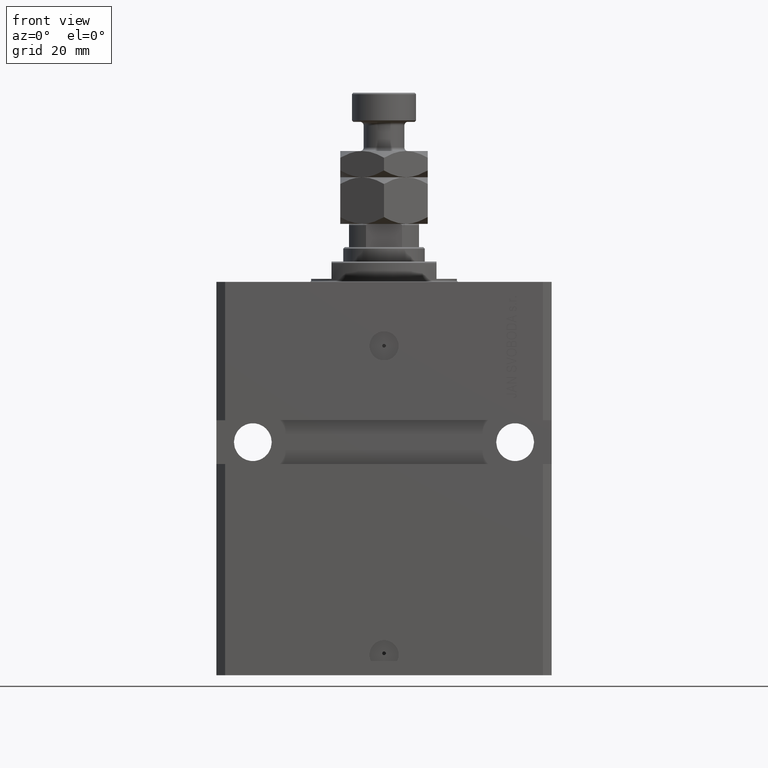
[diagram: clean part render]
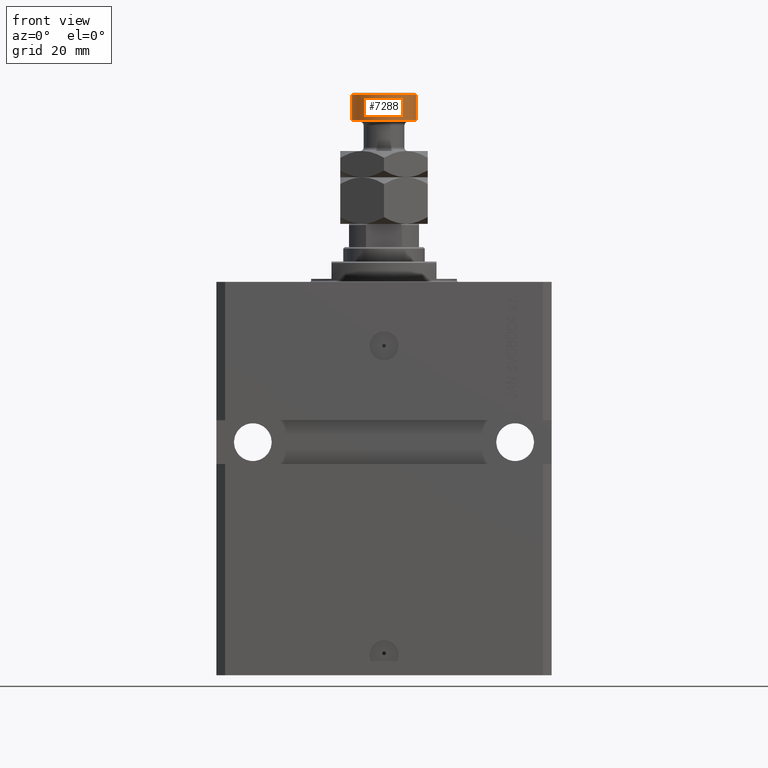
[diagram: same view with one face highlighted and labeled with its STEP entity id]
A machine part, front view. The second image highlights one B-rep face of the part: STEP entity #7288.
In plain terms, the highlighted cylindrical surface (edge-blend (fillet) strip) has radius 11 mm, axis along (-0, -0, -1).
Its self-contained STEP definition (entity closure, byte-faithful):
#4682 = AXIS2_PLACEMENT_3D ( 'NONE', #28745, #43405, #8161 ) ;
#4848 = CIRCLE ( 'NONE', #10582, 11.00000000000000000 ) ;
#6875 = DIRECTION ( 'NONE',  ( -0.000000000000000000, -0.000000000000000000, 1.000000000000000000 ) ) ;
#6918 = CARTESIAN_POINT ( 'NONE',  ( 11.00000000000000000, 1.347111479062088405E-15, 45.00000000000000711 ) ) ;
#7006 = VERTEX_POINT ( 'NONE', #44578 ) ;
#7288 = ADVANCED_FACE ( 'NONE', ( #35945 ), #32082, .T. ) ;
#7792 = VERTEX_POINT ( 'NONE', #29947 ) ;
#8161 = DIRECTION ( 'NONE',  ( 1.000000000000000000, 0.000000000000000000, 0.000000000000000000 ) ) ;
#8205 = VERTEX_POINT ( 'NONE', #45300 ) ;
#8881 = ORIENTED_EDGE ( 'NONE', *, *, #28203, .F. ) ;
#10582 = AXIS2_PLACEMENT_3D ( 'NONE', #45222, #6875, #33406 ) ;
#12874 = DIRECTION ( 'NONE',  ( -0.000000000000000000, -0.000000000000000000, -1.000000000000000000 ) ) ;
#14477 = EDGE_CURVE ( 'NONE', #7006, #8205, #17853, .T. ) ;
#16134 = DIRECTION ( 'NONE',  ( -1.000000000000000000, 0.000000000000000000, 0.000000000000000000 ) ) ;
#17518 = CARTESIAN_POINT ( 'NONE',  ( -11.00000000000000000, 0.000000000000000000, 45.00000000000000711 ) ) ;
#17853 = CIRCLE ( 'NONE', #4682, 11.00000000000000000 ) ;
#24399 = EDGE_CURVE ( 'NONE', #7792, #37128, #4848, .T. ) ;
#25775 = EDGE_CURVE ( 'NONE', #8205, #7792, #45017, .T. ) ;
#26138 = ORIENTED_EDGE ( 'NONE', *, *, #24399, .T. ) ;
#27478 = DIRECTION ( 'NONE',  ( -0.000000000000000000, -0.000000000000000000, -1.000000000000000000 ) ) ;
#27897 = VECTOR ( 'NONE', #12874, 1000.000000000000000 ) ;
#28074 = ORIENTED_EDGE ( 'NONE', *, *, #25775, .T. ) ;
#28203 = EDGE_CURVE ( 'NONE', #7006, #37128, #42932, .T. ) ;
#28745 = CARTESIAN_POINT ( 'NONE',  ( 0.000000000000000000, 0.000000000000000000, 44.50000000000001421 ) ) ;
#29484 = VECTOR ( 'NONE', #50404, 1000.000000000000000 ) ;
#29947 = CARTESIAN_POINT ( 'NONE',  ( -11.00000000000000000, 0.000000000000000000, 35.50000000000001421 ) ) ;
#32082 = CYLINDRICAL_SURFACE ( 'NONE', #34863, 11.00000000000000000 ) ;
#33406 = DIRECTION ( 'NONE',  ( 1.000000000000000000, 0.000000000000000000, 0.000000000000000000 ) ) ;
#33476 = EDGE_LOOP ( 'NONE', ( #8881, #36369, #28074, #26138 ) ) ;
#34863 = AXIS2_PLACEMENT_3D ( 'NONE', #39299, #27478, #16134 ) ;
#35945 = FACE_OUTER_BOUND ( 'NONE', #33476, .T. ) ;
#36369 = ORIENTED_EDGE ( 'NONE', *, *, #14477, .T. ) ;
#37128 = VERTEX_POINT ( 'NONE', #45818 ) ;
#39299 = CARTESIAN_POINT ( 'NONE',  ( 0.000000000000000000, 0.000000000000000000, 45.00000000000000711 ) ) ;
#42932 = LINE ( 'NONE', #6918, #29484 ) ;
#43405 = DIRECTION ( 'NONE',  ( 0.000000000000000000, 0.000000000000000000, -1.000000000000000000 ) ) ;
#44578 = CARTESIAN_POINT ( 'NONE',  ( 11.00000000000000000, 1.347111479062088405E-15, 44.50000000000001421 ) ) ;
#45017 = LINE ( 'NONE', #17518, #27897 ) ;
#45222 = CARTESIAN_POINT ( 'NONE',  ( 0.000000000000000000, 0.000000000000000000, 35.50000000000001421 ) ) ;
#45300 = CARTESIAN_POINT ( 'NONE',  ( -11.00000000000000000, 0.000000000000000000, 44.50000000000001421 ) ) ;
#45818 = CARTESIAN_POINT ( 'NONE',  ( 11.00000000000000000, 1.347111479062088405E-15, 35.50000000000001421 ) ) ;
#50404 = DIRECTION ( 'NONE',  ( -0.000000000000000000, -0.000000000000000000, -1.000000000000000000 ) ) ;